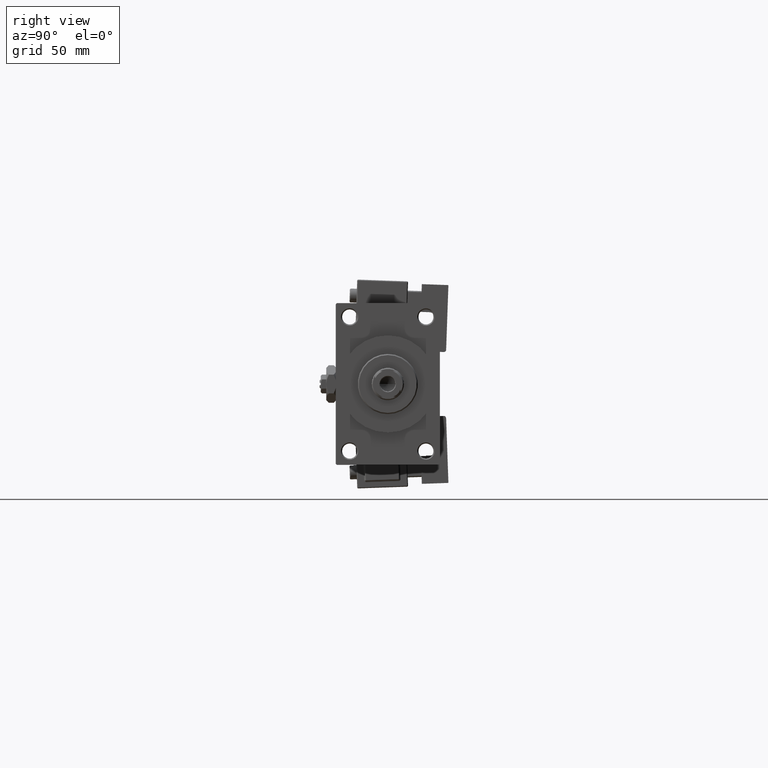
[diagram: clean part render]
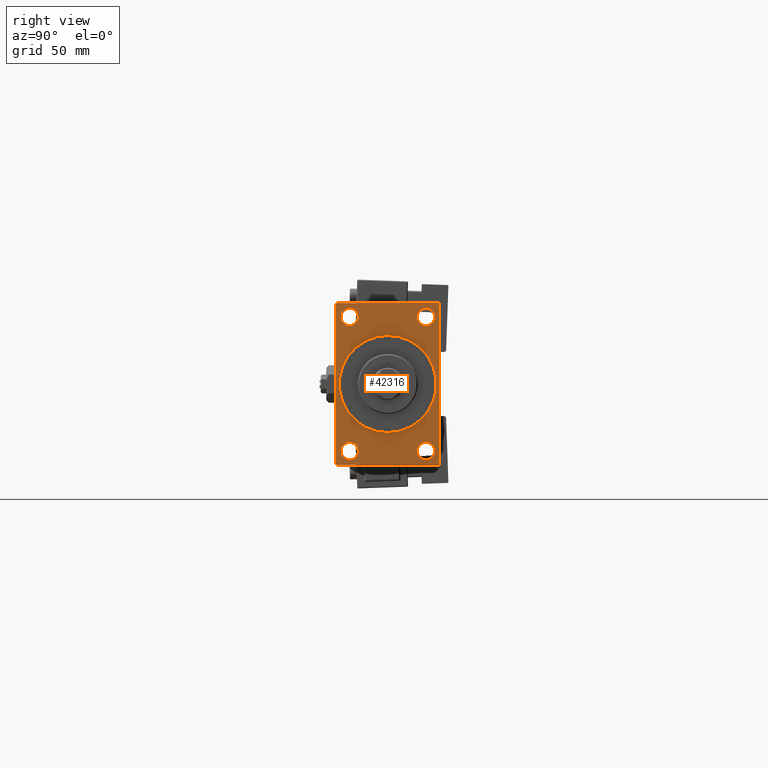
[diagram: same view with one face highlighted and labeled with its STEP entity id]
A machine part, right view. The second image highlights one B-rep face of the part: STEP entity #42316.
In plain terms, the highlighted planar face has unit normal (-1, 0, 0).
Its self-contained STEP definition (entity closure, byte-faithful):
#291 = DIRECTION ( 'NONE',  ( -0.000000000000000000, -0.7071067811865279218, -0.7071067811865671127 ) ) ;
#602 = AXIS2_PLACEMENT_3D ( 'NONE', #44165, #8599, #21054 ) ;
#737 = EDGE_LOOP ( 'NONE', ( #6168, #4816, #7928, #2803, #14748, #24650, #7262, #39187 ) ) ;
#988 = EDGE_CURVE ( 'NONE', #40093, #39023, #39005, .T. ) ;
#1147 = VERTEX_POINT ( 'NONE', #34943 ) ;
#1305 = CARTESIAN_POINT ( 'NONE',  ( 253.0000000000000000, -22.50000000000000355, 34.50000000000000000 ) ) ;
#1712 = CARTESIAN_POINT ( 'NONE',  ( 253.0000000000000000, -16.50000000000000000, 29.00000000000000711 ) ) ;
#2398 = DIRECTION ( 'NONE',  ( -1.000000000000000000, -0.000000000000000000, -0.000000000000000000 ) ) ;
#2498 = AXIS2_PLACEMENT_3D ( 'NONE', #26553, #2398, #21874 ) ;
#2652 = CARTESIAN_POINT ( 'NONE',  ( 253.0000000000000000, 16.50000000000000000, 32.75000000000022737 ) ) ;
#2674 = CARTESIAN_POINT ( 'NONE',  ( 253.0000000000000000, -22.00000000000000355, -35.00000000000000000 ) ) ;
#2803 = ORIENTED_EDGE ( 'NONE', *, *, #33214, .T. ) ;
#3011 = CIRCLE ( 'NONE', #38662, 3.750000000000222045 ) ;
#3060 = VERTEX_POINT ( 'NONE', #37062 ) ;
#3364 = DIRECTION ( 'NONE',  ( -1.000000000000000000, -0.000000000000000000, -0.000000000000000000 ) ) ;
#3881 = ORIENTED_EDGE ( 'NONE', *, *, #28733, .T. ) ;
#3940 = VERTEX_POINT ( 'NONE', #46461 ) ;
#3963 = VERTEX_POINT ( 'NONE', #45696 ) ;
#4534 = VECTOR ( 'NONE', #45549, 1000.000000000000000 ) ;
#4753 = DIRECTION ( 'NONE',  ( -1.000000000000000000, -0.000000000000000000, -0.000000000000000000 ) ) ;
#4816 = ORIENTED_EDGE ( 'NONE', *, *, #45944, .T. ) ;
#4879 = VERTEX_POINT ( 'NONE', #35582 ) ;
#5512 = FACE_BOUND ( 'NONE', #13193, .T. ) ;
#5569 = ORIENTED_EDGE ( 'NONE', *, *, #37640, .F. ) ;
#6022 = PLANE ( 'NONE',  #33276 ) ;
#6168 = ORIENTED_EDGE ( 'NONE', *, *, #34421, .T. ) ;
#6241 = ORIENTED_EDGE ( 'NONE', *, *, #41533, .T. ) ;
#6277 = FACE_BOUND ( 'NONE', #31336, .T. ) ;
#6335 = AXIS2_PLACEMENT_3D ( 'NONE', #12890, #3364, #32110 ) ;
#7262 = ORIENTED_EDGE ( 'NONE', *, *, #13755, .T. ) ;
#7331 = DIRECTION ( 'NONE',  ( 0.000000000000000000, 0.7071067811865474617, -0.7071067811865474617 ) ) ;
#7928 = ORIENTED_EDGE ( 'NONE', *, *, #12179, .F. ) ;
#8188 = CIRCLE ( 'NONE', #50471, 21.00000000000000000 ) ;
#8404 = DIRECTION ( 'NONE',  ( -1.000000000000000000, -0.000000000000000000, -0.000000000000000000 ) ) ;
#8599 = DIRECTION ( 'NONE',  ( -1.000000000000000000, -0.000000000000000000, -0.000000000000000000 ) ) ;
#9666 = DIRECTION ( 'NONE',  ( -0.000000000000000000, 0.000000000000000000, 1.000000000000000000 ) ) ;
#10017 = DIRECTION ( 'NONE',  ( 0.000000000000000000, 0.000000000000000000, 1.000000000000000000 ) ) ;
#10185 = CARTESIAN_POINT ( 'NONE',  ( 253.0000000000000000, 0.000000000000000000, 0.000000000000000000 ) ) ;
#10219 = CIRCLE ( 'NONE', #14381, 3.750000000000222045 ) ;
#10267 = DIRECTION ( 'NONE',  ( 0.000000000000000000, 0.000000000000000000, 1.000000000000000000 ) ) ;
#10718 = LINE ( 'NONE', #2674, #10926 ) ;
#10774 = EDGE_CURVE ( 'NONE', #21375, #21350, #41733, .T. ) ;
#10926 = VECTOR ( 'NONE', #7331, 1000.000000000000114 ) ;
#11066 = VERTEX_POINT ( 'NONE', #34765 ) ;
#11738 = VERTEX_POINT ( 'NONE', #16639 ) ;
#12179 = EDGE_CURVE ( 'NONE', #3060, #3940, #15469, .T. ) ;
#12647 = LINE ( 'NONE', #44301, #49539 ) ;
#12890 = CARTESIAN_POINT ( 'NONE',  ( 253.0000000000000000, 16.50000000000000000, 29.00000000000000355 ) ) ;
#13193 = EDGE_LOOP ( 'NONE', ( #6241, #15584 ) ) ;
#13755 = EDGE_CURVE ( 'NONE', #47859, #11066, #17297, .T. ) ;
#13829 = FACE_OUTER_BOUND ( 'NONE', #737, .T. ) ;
#14334 = DIRECTION ( 'NONE',  ( 1.000000000000000000, 0.000000000000000000, 0.000000000000000000 ) ) ;
#14381 = AXIS2_PLACEMENT_3D ( 'NONE', #49977, #18059, #10267 ) ;
#14474 = CARTESIAN_POINT ( 'NONE',  ( 253.0000000000000000, 22.49999999999999645, -34.50000000000000000 ) ) ;
#14572 = VERTEX_POINT ( 'NONE', #32117 ) ;
#14716 = VERTEX_POINT ( 'NONE', #29249 ) ;
#14748 = ORIENTED_EDGE ( 'NONE', *, *, #16816, .F. ) ;
#15469 = LINE ( 'NONE', #31563, #16931 ) ;
#15584 = ORIENTED_EDGE ( 'NONE', *, *, #21259, .T. ) ;
#16299 = VECTOR ( 'NONE', #30358, 1000.000000000000000 ) ;
#16354 = DIRECTION ( 'NONE',  ( 0.000000000000000000, -0.7071067811865474617, 0.7071067811865474617 ) ) ;
#16639 = CARTESIAN_POINT ( 'NONE',  ( 253.0000000000000000, 16.50000000000000000, 25.24999999999977973 ) ) ;
#16816 = EDGE_CURVE ( 'NONE', #14572, #3963, #21272, .T. ) ;
#16931 = VECTOR ( 'NONE', #27678, 1000.000000000000000 ) ;
#16967 = CARTESIAN_POINT ( 'NONE',  ( 253.0000000000000000, 16.50000000000000000, -28.99999999999999289 ) ) ;
#17297 = LINE ( 'NONE', #41399, #4534 ) ;
#17310 = CARTESIAN_POINT ( 'NONE',  ( 253.0000000000000000, 21.99999999999999645, 35.00000000000000000 ) ) ;
#18059 = DIRECTION ( 'NONE',  ( -1.000000000000000000, -0.000000000000000000, -0.000000000000000000 ) ) ;
#18294 = ORIENTED_EDGE ( 'NONE', *, *, #29002, .T. ) ;
#19299 = VERTEX_POINT ( 'NONE', #27747 ) ;
#19684 = DIRECTION ( 'NONE',  ( 0.000000000000000000, 0.000000000000000000, -1.000000000000000000 ) ) ;
#20607 = DIRECTION ( 'NONE',  ( 0.000000000000000000, 0.000000000000000000, 1.000000000000000000 ) ) ;
#21054 = DIRECTION ( 'NONE',  ( 0.000000000000000000, 0.000000000000000000, 1.000000000000000000 ) ) ;
#21259 = EDGE_CURVE ( 'NONE', #4879, #14716, #35378, .T. ) ;
#21272 = LINE ( 'NONE', #37124, #16299 ) ;
#21350 = VERTEX_POINT ( 'NONE', #41779 ) ;
#21375 = VERTEX_POINT ( 'NONE', #42035 ) ;
#21532 = CARTESIAN_POINT ( 'NONE',  ( 253.0000000000000000, 16.50000000000000000, -28.99999999999999289 ) ) ;
#21874 = DIRECTION ( 'NONE',  ( 0.000000000000000000, 0.000000000000000000, 1.000000000000000000 ) ) ;
#21921 = ORIENTED_EDGE ( 'NONE', *, *, #988, .T. ) ;
#22089 = CIRCLE ( 'NONE', #6335, 3.750000000000225597 ) ;
#22173 = EDGE_CURVE ( 'NONE', #11066, #42635, #23152, .T. ) ;
#22914 = AXIS2_PLACEMENT_3D ( 'NONE', #21532, #37379, #42287 ) ;
#23152 = LINE ( 'NONE', #35872, #48675 ) ;
#23478 = VERTEX_POINT ( 'NONE', #30073 ) ;
#24361 = DIRECTION ( 'NONE',  ( 1.000000000000000000, 0.000000000000000000, 0.000000000000000000 ) ) ;
#24650 = ORIENTED_EDGE ( 'NONE', *, *, #35646, .T. ) ;
#24838 = CIRCLE ( 'NONE', #37250, 3.750000000000222045 ) ;
#25471 = VECTOR ( 'NONE', #26164, 1000.000000000000000 ) ;
#26164 = DIRECTION ( 'NONE',  ( -0.000000000000000000, 0.7071067811865279218, 0.7071067811865671127 ) ) ;
#26553 = CARTESIAN_POINT ( 'NONE',  ( 253.0000000000000000, -16.50000000000000000, 29.00000000000000711 ) ) ;
#27049 = CARTESIAN_POINT ( 'NONE',  ( 253.0000000000000000, -16.50000000000000000, 25.24999999999978684 ) ) ;
#27678 = DIRECTION ( 'NONE',  ( 0.000000000000000000, -1.000000000000000000, 0.000000000000000000 ) ) ;
#27747 = CARTESIAN_POINT ( 'NONE',  ( 253.0000000000000000, -16.50000000000000000, -25.24999999999976907 ) ) ;
#28259 = VERTEX_POINT ( 'NONE', #2652 ) ;
#28265 = CARTESIAN_POINT ( 'NONE',  ( 253.0000000000000000, 0.000000000000000000, 0.000000000000000000 ) ) ;
#28294 = ORIENTED_EDGE ( 'NONE', *, *, #10774, .F. ) ;
#28733 = EDGE_CURVE ( 'NONE', #11738, #28259, #22089, .T. ) ;
#29002 = EDGE_CURVE ( 'NONE', #23478, #19299, #3011, .T. ) ;
#29249 = CARTESIAN_POINT ( 'NONE',  ( 253.0000000000000000, 16.50000000000000000, -32.75000000000022027 ) ) ;
#29419 = FACE_BOUND ( 'NONE', #38596, .T. ) ;
#29544 = ORIENTED_EDGE ( 'NONE', *, *, #49916, .T. ) ;
#30073 = CARTESIAN_POINT ( 'NONE',  ( 253.0000000000000000, -16.50000000000000000, -32.75000000000022027 ) ) ;
#30358 = DIRECTION ( 'NONE',  ( 0.000000000000000000, 0.000000000000000000, -1.000000000000000000 ) ) ;
#30884 = EDGE_CURVE ( 'NONE', #28259, #11738, #36152, .T. ) ;
#31336 = EDGE_LOOP ( 'NONE', ( #3881, #49018 ) ) ;
#31563 = CARTESIAN_POINT ( 'NONE',  ( 253.0000000000000000, 22.49999999999999645, -35.00000000000000000 ) ) ;
#32110 = DIRECTION ( 'NONE',  ( 0.000000000000000000, 0.000000000000000000, 1.000000000000000000 ) ) ;
#32117 = CARTESIAN_POINT ( 'NONE',  ( 253.0000000000000000, 22.49999999999999645, 34.50000000000000000 ) ) ;
#33214 = EDGE_CURVE ( 'NONE', #3060, #3963, #45869, .T. ) ;
#33276 = AXIS2_PLACEMENT_3D ( 'NONE', #10185, #49894, #9666 ) ;
#33437 = AXIS2_PLACEMENT_3D ( 'NONE', #50133, #14334, #45978 ) ;
#34064 = FACE_BOUND ( 'NONE', #39707, .T. ) ;
#34421 = EDGE_CURVE ( 'NONE', #42635, #1147, #12647, .T. ) ;
#34765 = CARTESIAN_POINT ( 'NONE',  ( 253.0000000000000000, -22.00000000000001776, 35.00000000000000000 ) ) ;
#34943 = CARTESIAN_POINT ( 'NONE',  ( 253.0000000000000000, -22.50000000000000355, -34.50000000000000000 ) ) ;
#34959 = CIRCLE ( 'NONE', #39906, 3.750000000000222045 ) ;
#35378 = CIRCLE ( 'NONE', #22914, 3.750000000000222045 ) ;
#35582 = CARTESIAN_POINT ( 'NONE',  ( 253.0000000000000000, 16.50000000000000000, -25.24999999999976907 ) ) ;
#35646 = EDGE_CURVE ( 'NONE', #14572, #47859, #47233, .T. ) ;
#35872 = CARTESIAN_POINT ( 'NONE',  ( 253.0000000000000000, -22.50000000000000355, 34.50000000000000000 ) ) ;
#36152 = CIRCLE ( 'NONE', #602, 3.750000000000225597 ) ;
#36786 = DIRECTION ( 'NONE',  ( 0.000000000000000000, 0.000000000000000000, -1.000000000000000000 ) ) ;
#37062 = CARTESIAN_POINT ( 'NONE',  ( 253.0000000000000000, 22.00000000000002132, -35.00000000000000000 ) ) ;
#37124 = CARTESIAN_POINT ( 'NONE',  ( 253.0000000000000000, 22.49999999999999645, 35.00000000000000000 ) ) ;
#37225 = EDGE_LOOP ( 'NONE', ( #28294, #5569 ) ) ;
#37250 = AXIS2_PLACEMENT_3D ( 'NONE', #1712, #40221, #10017 ) ;
#37379 = DIRECTION ( 'NONE',  ( -1.000000000000000000, -0.000000000000000000, -0.000000000000000000 ) ) ;
#37640 = EDGE_CURVE ( 'NONE', #21350, #21375, #8188, .T. ) ;
#37681 = CARTESIAN_POINT ( 'NONE',  ( 253.0000000000000000, -16.50000000000000000, 32.75000000000022737 ) ) ;
#38340 = EDGE_CURVE ( 'NONE', #39023, #40093, #24838, .T. ) ;
#38596 = EDGE_LOOP ( 'NONE', ( #21921, #49052 ) ) ;
#38662 = AXIS2_PLACEMENT_3D ( 'NONE', #47876, #8404, #20607 ) ;
#39005 = CIRCLE ( 'NONE', #2498, 3.750000000000222045 ) ;
#39023 = VERTEX_POINT ( 'NONE', #37681 ) ;
#39187 = ORIENTED_EDGE ( 'NONE', *, *, #22173, .T. ) ;
#39707 = EDGE_LOOP ( 'NONE', ( #18294, #29544 ) ) ;
#39906 = AXIS2_PLACEMENT_3D ( 'NONE', #16967, #4753, #40312 ) ;
#40093 = VERTEX_POINT ( 'NONE', #27049 ) ;
#40221 = DIRECTION ( 'NONE',  ( -1.000000000000000000, -0.000000000000000000, -0.000000000000000000 ) ) ;
#40312 = DIRECTION ( 'NONE',  ( 0.000000000000000000, 0.000000000000000000, 1.000000000000000000 ) ) ;
#40464 = VECTOR ( 'NONE', #16354, 1000.000000000000114 ) ;
#41399 = CARTESIAN_POINT ( 'NONE',  ( 253.0000000000000000, 22.49999999999999645, 35.00000000000000000 ) ) ;
#41533 = EDGE_CURVE ( 'NONE', #14716, #4879, #34959, .T. ) ;
#41733 = CIRCLE ( 'NONE', #33437, 21.00000000000000000 ) ;
#41779 = CARTESIAN_POINT ( 'NONE',  ( 253.0000000000000000, 2.571758278209441661E-15, -21.00000000000000000 ) ) ;
#42035 = CARTESIAN_POINT ( 'NONE',  ( 253.0000000000000000, 0.000000000000000000, 21.00000000000000000 ) ) ;
#42287 = DIRECTION ( 'NONE',  ( 0.000000000000000000, 0.000000000000000000, 1.000000000000000000 ) ) ;
#42316 = ADVANCED_FACE ( 'NONE', ( #29419, #34064, #5512, #6277, #49381, #13829 ), #6022, .F. ) ;
#42635 = VERTEX_POINT ( 'NONE', #1305 ) ;
#43350 = CARTESIAN_POINT ( 'NONE',  ( 253.0000000000000000, 21.99999999999999645, 35.00000000000000000 ) ) ;
#44165 = CARTESIAN_POINT ( 'NONE',  ( 253.0000000000000000, 16.50000000000000000, 29.00000000000000355 ) ) ;
#44301 = CARTESIAN_POINT ( 'NONE',  ( 253.0000000000000000, -22.50000000000000355, 35.00000000000000000 ) ) ;
#45549 = DIRECTION ( 'NONE',  ( 0.000000000000000000, -1.000000000000000000, 0.000000000000000000 ) ) ;
#45696 = CARTESIAN_POINT ( 'NONE',  ( 253.0000000000000000, 22.49999999999999645, -34.50000000000000000 ) ) ;
#45869 = LINE ( 'NONE', #14474, #25471 ) ;
#45944 = EDGE_CURVE ( 'NONE', #1147, #3940, #10718, .T. ) ;
#45978 = DIRECTION ( 'NONE',  ( 0.000000000000000000, 0.000000000000000000, -1.000000000000000000 ) ) ;
#46461 = CARTESIAN_POINT ( 'NONE',  ( 253.0000000000000000, -21.99999999999998934, -35.00000000000000000 ) ) ;
#47233 = LINE ( 'NONE', #43350, #40464 ) ;
#47859 = VERTEX_POINT ( 'NONE', #17310 ) ;
#47876 = CARTESIAN_POINT ( 'NONE',  ( 253.0000000000000000, -16.50000000000000000, -28.99999999999999289 ) ) ;
#48675 = VECTOR ( 'NONE', #291, 1000.000000000000000 ) ;
#49018 = ORIENTED_EDGE ( 'NONE', *, *, #30884, .T. ) ;
#49052 = ORIENTED_EDGE ( 'NONE', *, *, #38340, .T. ) ;
#49381 = FACE_BOUND ( 'NONE', #37225, .T. ) ;
#49539 = VECTOR ( 'NONE', #36786, 1000.000000000000000 ) ;
#49894 = DIRECTION ( 'NONE',  ( -1.000000000000000000, 0.000000000000000000, -0.000000000000000000 ) ) ;
#49916 = EDGE_CURVE ( 'NONE', #19299, #23478, #10219, .T. ) ;
#49977 = CARTESIAN_POINT ( 'NONE',  ( 253.0000000000000000, -16.50000000000000000, -28.99999999999999289 ) ) ;
#50133 = CARTESIAN_POINT ( 'NONE',  ( 253.0000000000000000, 0.000000000000000000, 0.000000000000000000 ) ) ;
#50471 = AXIS2_PLACEMENT_3D ( 'NONE', #28265, #24361, #19684 ) ;